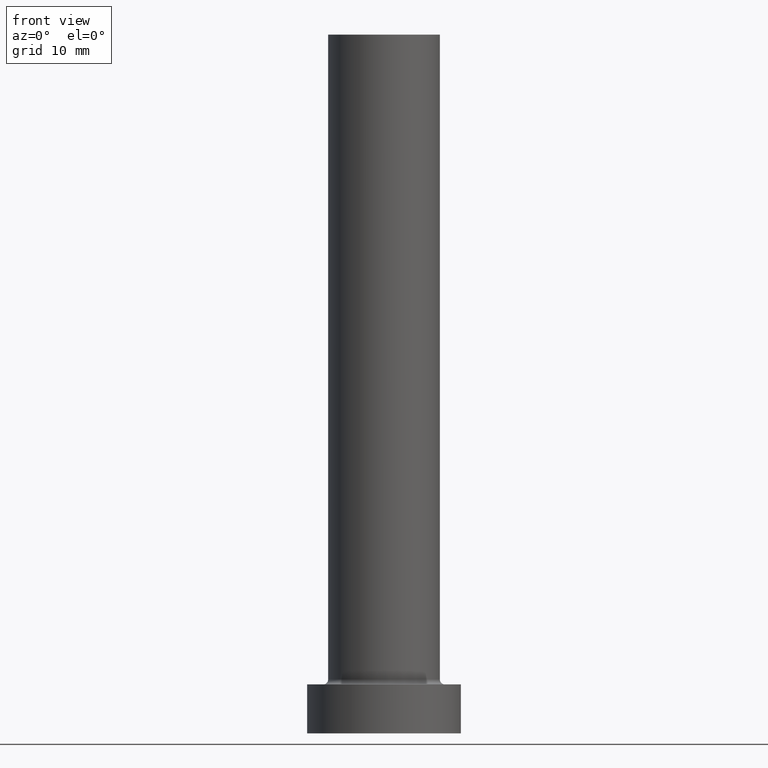
[diagram: clean part render]
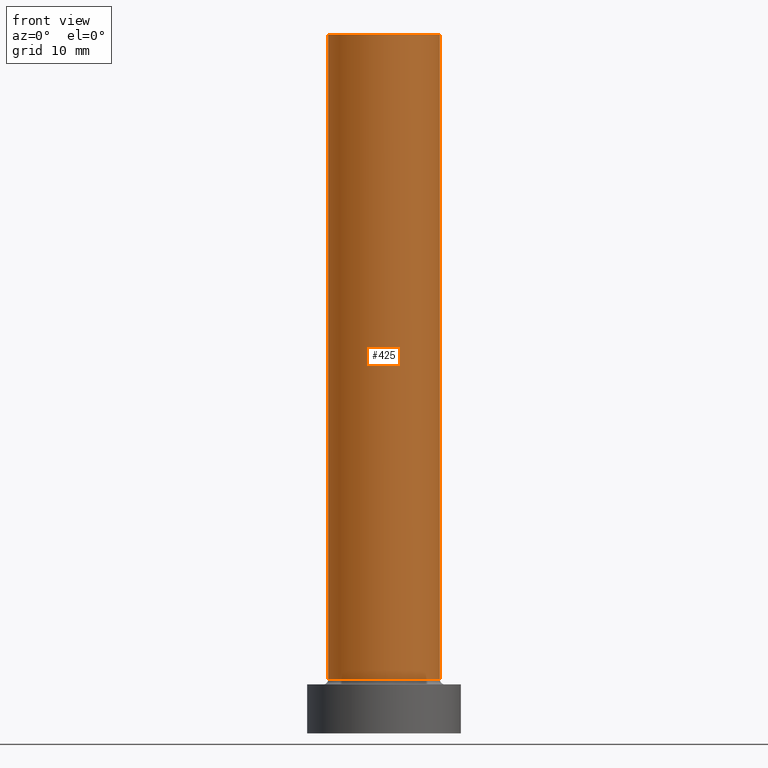
[diagram: same view with one face highlighted and labeled with its STEP entity id]
A machine part, front view. The second image highlights one B-rep face of the part: STEP entity #425.
In plain terms, the highlighted cylindrical surface (partial cylindrical patch) has radius 8 mm, axis along (-0, -0, -1).
Its self-contained STEP definition (entity closure, byte-faithful):
#6 = VERTEX_POINT ( 'NONE', #13 ) ;
#13 = CARTESIAN_POINT ( 'NONE',  ( 8.000000000000000000, 9.797174393178823685E-16, 100.0000000000000000 ) ) ;
#18 = CARTESIAN_POINT ( 'NONE',  ( 0.000000000000000000, 0.000000000000000000, 7.699999999999998401 ) ) ;
#24 = CIRCLE ( 'NONE', #152, 8.000000000000000000 ) ;
#38 = VECTOR ( 'NONE', #419, 1000.000000000000000 ) ;
#42 = CARTESIAN_POINT ( 'NONE',  ( -8.000000000000000000, 0.000000000000000000, 100.0000000000000000 ) ) ;
#64 = CIRCLE ( 'NONE', #441, 8.000000000000000000 ) ;
#74 = FACE_OUTER_BOUND ( 'NONE', #395, .T. ) ;
#111 = ORIENTED_EDGE ( 'NONE', *, *, #374, .T. ) ;
#115 = DIRECTION ( 'NONE',  ( 1.000000000000000000, 0.000000000000000000, 0.000000000000000000 ) ) ;
#143 = DIRECTION ( 'NONE',  ( -0.000000000000000000, -0.000000000000000000, -1.000000000000000000 ) ) ;
#144 = VERTEX_POINT ( 'NONE', #168 ) ;
#149 = VERTEX_POINT ( 'NONE', #238 ) ;
#152 = AXIS2_PLACEMENT_3D ( 'NONE', #432, #177, #115 ) ;
#168 = CARTESIAN_POINT ( 'NONE',  ( 8.000000000000000000, 9.797174393178823685E-16, 7.699999999999998401 ) ) ;
#177 = DIRECTION ( 'NONE',  ( 0.000000000000000000, 0.000000000000000000, 1.000000000000000000 ) ) ;
#183 = DIRECTION ( 'NONE',  ( -0.000000000000000000, -0.000000000000000000, -1.000000000000000000 ) ) ;
#188 = AXIS2_PLACEMENT_3D ( 'NONE', #458, #143, #279 ) ;
#200 = EDGE_CURVE ( 'NONE', #6, #144, #455, .T. ) ;
#210 = CYLINDRICAL_SURFACE ( 'NONE', #188, 8.000000000000000000 ) ;
#217 = CARTESIAN_POINT ( 'NONE',  ( -8.000000000000000000, 0.000000000000000000, 100.0000000000000000 ) ) ;
#221 = DIRECTION ( 'NONE',  ( 0.000000000000000000, 0.000000000000000000, 1.000000000000000000 ) ) ;
#234 = ORIENTED_EDGE ( 'NONE', *, *, #438, .T. ) ;
#238 = CARTESIAN_POINT ( 'NONE',  ( -8.000000000000000000, 0.000000000000000000, 7.699999999999998401 ) ) ;
#264 = ORIENTED_EDGE ( 'NONE', *, *, #200, .F. ) ;
#273 = CARTESIAN_POINT ( 'NONE',  ( 8.000000000000000000, 9.797174393178823685E-16, 100.0000000000000000 ) ) ;
#279 = DIRECTION ( 'NONE',  ( -1.000000000000000000, 0.000000000000000000, 0.000000000000000000 ) ) ;
#352 = EDGE_CURVE ( 'NONE', #365, #6, #24, .T. ) ;
#365 = VERTEX_POINT ( 'NONE', #217 ) ;
#374 = EDGE_CURVE ( 'NONE', #365, #149, #397, .T. ) ;
#395 = EDGE_LOOP ( 'NONE', ( #264, #400, #111, #234 ) ) ;
#397 = LINE ( 'NONE', #42, #461 ) ;
#400 = ORIENTED_EDGE ( 'NONE', *, *, #352, .F. ) ;
#419 = DIRECTION ( 'NONE',  ( -0.000000000000000000, -0.000000000000000000, -1.000000000000000000 ) ) ;
#425 = ADVANCED_FACE ( 'NONE', ( #74 ), #210, .T. ) ;
#432 = CARTESIAN_POINT ( 'NONE',  ( 0.000000000000000000, 0.000000000000000000, 100.0000000000000000 ) ) ;
#438 = EDGE_CURVE ( 'NONE', #149, #144, #64, .T. ) ;
#441 = AXIS2_PLACEMENT_3D ( 'NONE', #18, #221, #446 ) ;
#446 = DIRECTION ( 'NONE',  ( 1.000000000000000000, 0.000000000000000000, 0.000000000000000000 ) ) ;
#455 = LINE ( 'NONE', #273, #38 ) ;
#458 = CARTESIAN_POINT ( 'NONE',  ( 0.000000000000000000, 0.000000000000000000, 100.0000000000000000 ) ) ;
#461 = VECTOR ( 'NONE', #183, 1000.000000000000000 ) ;